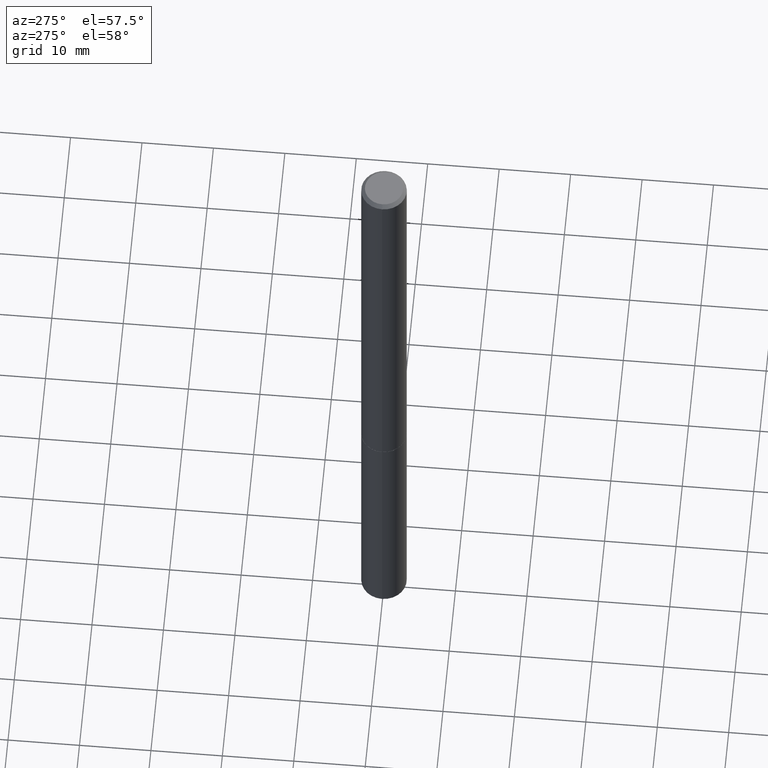
[diagram: clean part render]
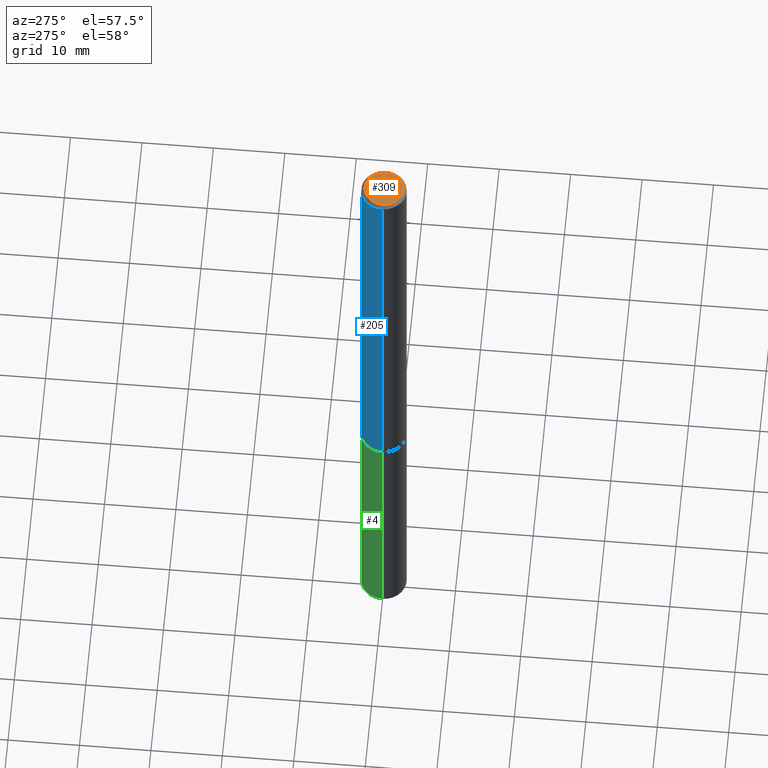
[diagram: same view with three faces highlighted in distinct colors, each labeled with its STEP entity id]
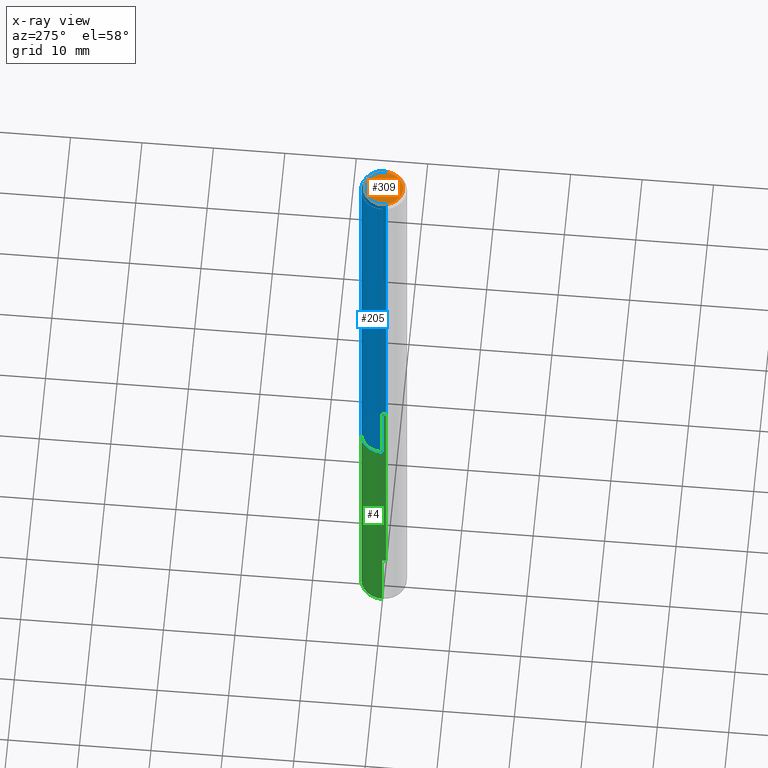
[diagram: x-ray of the same camera — body ghosted, the three highlighted faces saturated]
A machine part, auxiliary view with three faces highlighted in distinct colors.
The next image is the same camera in x-ray (body ghosted, the three faces saturated) — at least one of them is partly hidden behind the body in this view.
Their STEP definitions:

[orange] entity #309 — the highlighted planar face has unit normal (0, -0, -1).
#10 = ORIENTED_EDGE ( 'NONE', *, *, #19, .T. ) ;
#19 = EDGE_CURVE ( 'NONE', #125, #121, #116, .T. ) ;
#21 = AXIS2_PLACEMENT_3D ( 'NONE', #380, #30, #159 ) ;
#30 = DIRECTION ( 'NONE',  ( -2.445468806185136597E-29, 3.491481338843145583E-15, 1.000000000000000000 ) ) ;
#47 = DIRECTION ( 'NONE',  ( 1.000000000000000000, -6.982962677686266711E-15, 4.876206205277405800E-29 ) ) ;
#58 = FACE_OUTER_BOUND ( 'NONE', #342, .T. ) ;
#116 = CIRCLE ( 'NONE', #286, 0.1049999999999997463 ) ;
#121 = VERTEX_POINT ( 'NONE', #158 ) ;
#125 = VERTEX_POINT ( 'NONE', #358 ) ;
#158 = CARTESIAN_POINT ( 'NONE',  ( -0.1049999999999997463, 7.681258945454873068E-16, 4.268512490095161194E-18 ) ) ;
#159 = DIRECTION ( 'NONE',  ( 1.000000000000000000, -6.982962677686266711E-15, 4.876206205277405800E-29 ) ) ;
#183 = CARTESIAN_POINT ( 'NONE',  ( 7.332110811570562494E-16, 0.1049999999999997463, -3.644712843334792426E-16 ) ) ;
#219 = ORIENTED_EDGE ( 'NONE', *, *, #371, .T. ) ;
#244 = CIRCLE ( 'NONE', #21, 0.1049999999999997463 ) ;
#259 = AXIS2_PLACEMENT_3D ( 'NONE', #183, #390, #357 ) ;
#269 = DIRECTION ( 'NONE',  ( -2.445468806185136597E-29, 3.491481338843145583E-15, 1.000000000000000000 ) ) ;
#274 = CARTESIAN_POINT ( 'NONE',  ( -1.043851414335219820E-46, 1.490343170380447200E-32, 4.268512490100411279E-18 ) ) ;
#276 = PLANE ( 'NONE',  #259 ) ;
#286 = AXIS2_PLACEMENT_3D ( 'NONE', #274, #269, #47 ) ;
#309 = ADVANCED_FACE ( 'NONE', ( #58 ), #276, .F. ) ;
#342 = EDGE_LOOP ( 'NONE', ( #219, #10 ) ) ;
#357 = DIRECTION ( 'NONE',  ( -1.000000000000000000, 6.982962677686265922E-15, -4.876176775795935793E-29 ) ) ;
#358 = CARTESIAN_POINT ( 'NONE',  ( 0.1049999999999997463, -8.238720831321557908E-16, 4.268512490105855498E-18 ) ) ;
#371 = EDGE_CURVE ( 'NONE', #121, #125, #244, .T. ) ;
#380 = CARTESIAN_POINT ( 'NONE',  ( -1.043851414335219820E-46, 1.490343170380447200E-32, 4.268512490100411279E-18 ) ) ;
#390 = DIRECTION ( 'NONE',  ( 2.438088387897960049E-29, -3.491481338843145188E-15, -1.000000000000000000 ) ) ;

[blue] entity #205 — the highlighted cylindrical surface (edge-blend (fillet) strip) has radius 3.175 mm, axis along (-0, 0, 1).
#9 = VERTEX_POINT ( 'NONE', #143 ) ;
#33 = FACE_OUTER_BOUND ( 'NONE', #168, .T. ) ;
#45 = VERTEX_POINT ( 'NONE', #240 ) ;
#54 = DIRECTION ( 'NONE',  ( -2.445468806185136877E-29, 3.491481338843145188E-15, 1.000000000000000000 ) ) ;
#61 = CARTESIAN_POINT ( 'NONE',  ( 4.890937612370274910E-31, -6.982962677686295307E-17, -0.02000000000000000736 ) ) ;
#62 = EDGE_CURVE ( 'NONE', #9, #199, #268, .T. ) ;
#64 = CARTESIAN_POINT ( 'NONE',  ( 0.000000000000000000, 0.000000000000000000, 0.000000000000000000 ) ) ;
#70 = CARTESIAN_POINT ( 'NONE',  ( -0.1249999999999997086, 8.030407079339183643E-16, -0.02000000000000000736 ) ) ;
#71 = ORIENTED_EDGE ( 'NONE', *, *, #131, .F. ) ;
#94 = CARTESIAN_POINT ( 'NONE',  ( 0.1249999999999998612, -8.728703347107823527E-16, 6.095220969744912735E-30 ) ) ;
#105 = ORIENTED_EDGE ( 'NONE', *, *, #218, .T. ) ;
#117 = DIRECTION ( 'NONE',  ( 1.000000000000000000, -6.982962677686270655E-15, 0.000000000000000000 ) ) ;
#122 = VECTOR ( 'NONE', #311, 39.37007874015748143 ) ;
#124 = CYLINDRICAL_SURFACE ( 'NONE', #129, 0.1249999999999998612 ) ;
#129 = AXIS2_PLACEMENT_3D ( 'NONE', #64, #256, #364 ) ;
#131 = EDGE_CURVE ( 'NONE', #9, #45, #332, .T. ) ;
#143 = CARTESIAN_POINT ( 'NONE',  ( 0.1250000000000000000, -9.598082200479808430E-15, -2.499000000000000998 ) ) ;
#146 = CARTESIAN_POINT ( 'NONE',  ( 6.111226546656659252E-29, -8.725211865769023513E-15, -2.499000000000000998 ) ) ;
#160 = DIRECTION ( 'NONE',  ( -2.445468806185136597E-29, 3.491481338843145583E-15, 1.000000000000000000 ) ) ;
#166 = VECTOR ( 'NONE', #54, 39.37007874015748143 ) ;
#167 = EDGE_CURVE ( 'NONE', #45, #378, #189, .T. ) ;
#168 = EDGE_LOOP ( 'NONE', ( #293, #105, #373, #71 ) ) ;
#178 = AXIS2_PLACEMENT_3D ( 'NONE', #61, #160, #186 ) ;
#186 = DIRECTION ( 'NONE',  ( 1.000000000000000000, -6.982962677686266711E-15, 0.000000000000000000 ) ) ;
#189 = CIRCLE ( 'NONE', #178, 0.1249999999999997086 ) ;
#199 = VERTEX_POINT ( 'NONE', #257 ) ;
#205 = ADVANCED_FACE ( 'NONE', ( #33 ), #124, .T. ) ;
#214 = CARTESIAN_POINT ( 'NONE',  ( -0.1249999999999998612, 8.881784197001242463E-16, -6.148668862818625221E-30 ) ) ;
#218 = EDGE_CURVE ( 'NONE', #199, #378, #334, .T. ) ;
#240 = CARTESIAN_POINT ( 'NONE',  ( 0.1249999999999997086, -9.273918764983023769E-16, -0.02000000000000000736 ) ) ;
#256 = DIRECTION ( 'NONE',  ( -2.445468806185136597E-29, 3.491481338843145583E-15, 1.000000000000000000 ) ) ;
#257 = CARTESIAN_POINT ( 'NONE',  ( -0.1250000000000000000, -3.509342326572812651E-15, -2.499000000000000998 ) ) ;
#268 = CIRCLE ( 'NONE', #302, 0.1250000000000000000 ) ;
#292 = DIRECTION ( 'NONE',  ( -2.445468806185136597E-29, 3.491481338843145583E-15, 1.000000000000000000 ) ) ;
#293 = ORIENTED_EDGE ( 'NONE', *, *, #62, .T. ) ;
#302 = AXIS2_PLACEMENT_3D ( 'NONE', #146, #292, #117 ) ;
#311 = DIRECTION ( 'NONE',  ( -2.445468806185136877E-29, 3.491481338843145188E-15, 1.000000000000000000 ) ) ;
#332 = LINE ( 'NONE', #94, #122 ) ;
#334 = LINE ( 'NONE', #214, #166 ) ;
#364 = DIRECTION ( 'NONE',  ( 1.000000000000000000, -6.982962677686266711E-15, 4.876176775795935793E-29 ) ) ;
#373 = ORIENTED_EDGE ( 'NONE', *, *, #167, .F. ) ;
#378 = VERTEX_POINT ( 'NONE', #70 ) ;

[green] entity #4 — the highlighted cylindrical surface (edge-blend (fillet) strip) has radius 3.175 mm, axis along (-0, 0, 1).
#4 = ADVANCED_FACE ( 'NONE', ( #201 ), #343, .T. ) ;
#8 = EDGE_CURVE ( 'NONE', #333, #229, #209, .T. ) ;
#13 = EDGE_LOOP ( 'NONE', ( #247, #339, #365, #140 ) ) ;
#24 = CARTESIAN_POINT ( 'NONE',  ( 0.1250000000000000000, -9.601573681818648281E-15, -2.500000000000000000 ) ) ;
#27 = DIRECTION ( 'NONE',  ( -2.445468806185136597E-29, 3.491481338843145583E-15, 1.000000000000000000 ) ) ;
#34 = CIRCLE ( 'NONE', #313, 0.1250000000000000000 ) ;
#41 = EDGE_CURVE ( 'NONE', #290, #305, #150, .T. ) ;
#42 = CARTESIAN_POINT ( 'NONE',  ( 0.1249999999999997918, -1.482348760509402220E-14, -4.000000000000000000 ) ) ;
#55 = CARTESIAN_POINT ( 'NONE',  ( -0.1250000000000000000, 8.881784197001252323E-16, -6.148668862818632227E-30 ) ) ;
#81 = DIRECTION ( 'NONE',  ( -2.445468806185136877E-29, 3.491481338843145188E-15, 1.000000000000000000 ) ) ;
#84 = CARTESIAN_POINT ( 'NONE',  ( 6.113672015462842613E-29, -8.728703347107864943E-15, -2.500000000000000000 ) ) ;
#89 = DIRECTION ( 'NONE',  ( 1.000000000000000000, -6.982962677686270655E-15, 0.000000000000000000 ) ) ;
#96 = DIRECTION ( 'NONE',  ( 1.000000000000000000, -6.982962677686262766E-15, 0.000000000000000000 ) ) ;
#115 = VECTOR ( 'NONE', #215, 39.37007874015748143 ) ;
#118 = CARTESIAN_POINT ( 'NONE',  ( -0.1250000000000000000, -1.045913593154009919E-14, -2.500000000000000000 ) ) ;
#140 = ORIENTED_EDGE ( 'NONE', *, *, #8, .F. ) ;
#150 = LINE ( 'NONE', #55, #242 ) ;
#153 = CARTESIAN_POINT ( 'NONE',  ( -0.1249999999999997918, -1.309305502066180057E-14, -4.000000000000000000 ) ) ;
#177 = DIRECTION ( 'NONE',  ( 1.000000000000000000, -6.982962677686266711E-15, 4.876176775795935793E-29 ) ) ;
#201 = FACE_OUTER_BOUND ( 'NONE', #13, .T. ) ;
#209 = LINE ( 'NONE', #239, #115 ) ;
#215 = DIRECTION ( 'NONE',  ( -2.445468806185136877E-29, 3.491481338843145188E-15, 1.000000000000000000 ) ) ;
#229 = VERTEX_POINT ( 'NONE', #24 ) ;
#237 = EDGE_CURVE ( 'NONE', #229, #305, #34, .T. ) ;
#238 = DIRECTION ( 'NONE',  ( -2.445468806185136597E-29, 3.491481338843145583E-15, 1.000000000000000000 ) ) ;
#239 = CARTESIAN_POINT ( 'NONE',  ( 0.1250000000000000000, -8.728703347107833388E-16, 6.095220969744919741E-30 ) ) ;
#242 = VECTOR ( 'NONE', #81, 39.37007874015748143 ) ;
#247 = ORIENTED_EDGE ( 'NONE', *, *, #376, .T. ) ;
#260 = AXIS2_PLACEMENT_3D ( 'NONE', #359, #369, #96 ) ;
#290 = VERTEX_POINT ( 'NONE', #153 ) ;
#305 = VERTEX_POINT ( 'NONE', #118 ) ;
#313 = AXIS2_PLACEMENT_3D ( 'NONE', #84, #27, #89 ) ;
#331 = CIRCLE ( 'NONE', #260, 0.1250000000000000000 ) ;
#333 = VERTEX_POINT ( 'NONE', #42 ) ;
#339 = ORIENTED_EDGE ( 'NONE', *, *, #41, .T. ) ;
#343 = CYLINDRICAL_SURFACE ( 'NONE', #345, 0.1250000000000000000 ) ;
#345 = AXIS2_PLACEMENT_3D ( 'NONE', #382, #238, #177 ) ;
#359 = CARTESIAN_POINT ( 'NONE',  ( 9.781875224740546387E-29, -1.396592535537258233E-14, -4.000000000000000000 ) ) ;
#365 = ORIENTED_EDGE ( 'NONE', *, *, #237, .F. ) ;
#369 = DIRECTION ( 'NONE',  ( -2.445468806185136597E-29, 3.491481338843145583E-15, 1.000000000000000000 ) ) ;
#376 = EDGE_CURVE ( 'NONE', #333, #290, #331, .T. ) ;
#382 = CARTESIAN_POINT ( 'NONE',  ( 0.000000000000000000, 0.000000000000000000, 0.000000000000000000 ) ) ;